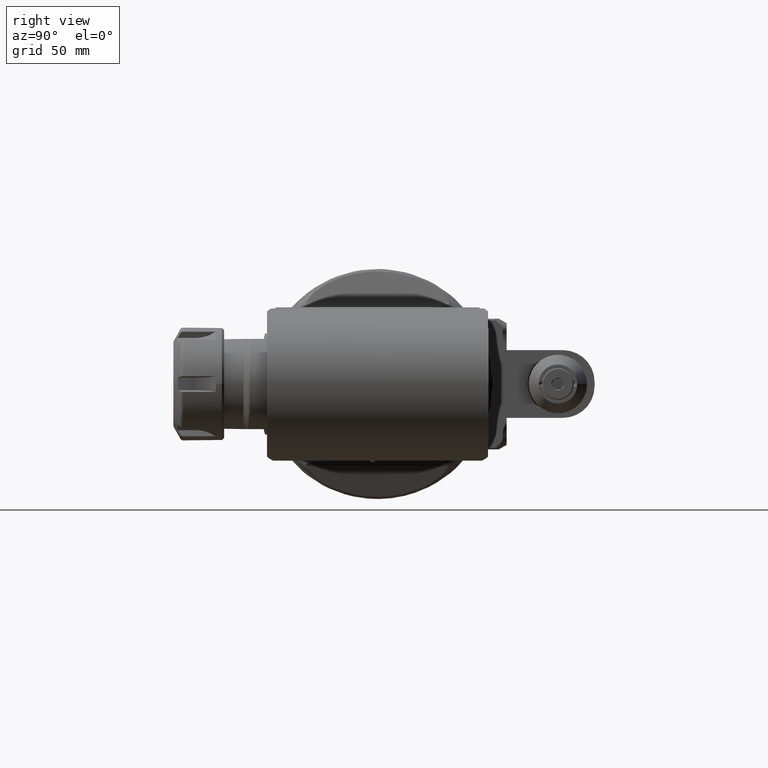
[diagram: clean part render]
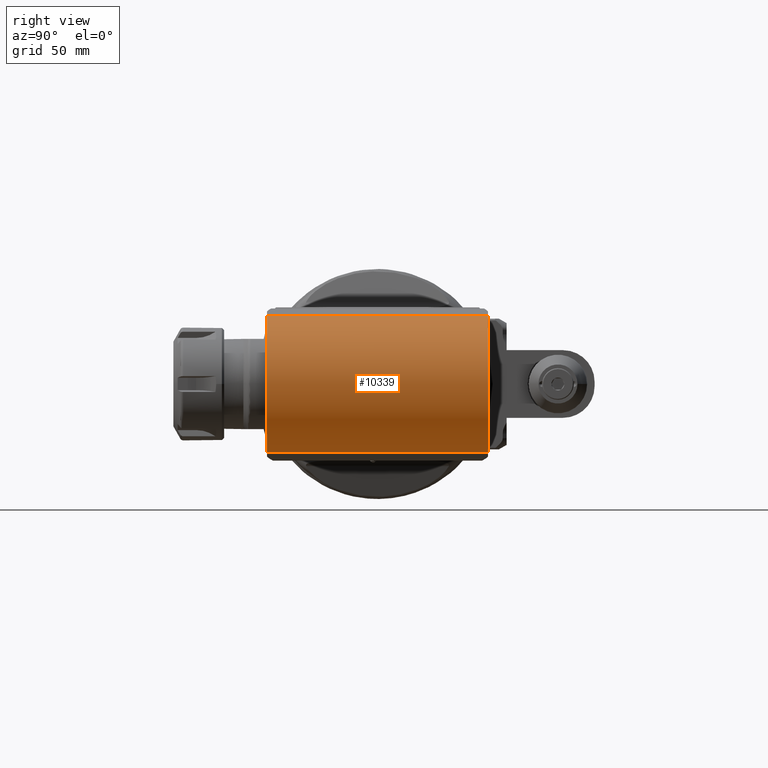
[diagram: same view with one face highlighted and labeled with its STEP entity id]
A machine part, right view. The second image highlights one B-rep face of the part: STEP entity #10339.
In plain terms, the highlighted cylindrical surface (partial cylindrical patch) has radius 31 mm, axis along (0, 1, 0).
Its self-contained STEP definition (entity closure, byte-faithful):
#801=LINE('',#14774,#1566);
#804=LINE('',#14842,#1569);
#1566=VECTOR('',#11983,98.);
#1569=VECTOR('',#12002,98.);
#2310=CYLINDRICAL_SURFACE('',#10984,31.);
#2438=FACE_OUTER_BOUND('',#3009,.T.);
#3009=EDGE_LOOP('',(#6920,#6921,#6922,#6923));
#3650=CIRCLE('',#10982,31.);
#3652=CIRCLE('',#10985,31.);
#4087=VERTEX_POINT('',#14771);
#4088=VERTEX_POINT('',#14773);
#4093=VERTEX_POINT('',#14799);
#4104=VERTEX_POINT('',#14841);
#5242=EDGE_CURVE('',#4088,#4087,#801,.T.);
#5250=EDGE_CURVE('',#4088,#4093,#3650,.T.);
#5262=EDGE_CURVE('',#4104,#4093,#804,.T.);
#5263=EDGE_CURVE('',#4104,#4087,#3652,.T.);
#6920=ORIENTED_EDGE('',*,*,#5262,.T.);
#6921=ORIENTED_EDGE('',*,*,#5250,.F.);
#6922=ORIENTED_EDGE('',*,*,#5242,.T.);
#6923=ORIENTED_EDGE('',*,*,#5263,.F.);
#10339=ADVANCED_FACE('',(#2438),#2310,.T.);
#10982=AXIS2_PLACEMENT_3D('',#14800,#11995,#11996);
#10984=AXIS2_PLACEMENT_3D('',#14840,#12000,#12001);
#10985=AXIS2_PLACEMENT_3D('',#14843,#12003,#12004);
#11983=DIRECTION('',(0.,1.,0.));
#11995=DIRECTION('center_axis',(0.,-1.,0.));
#11996=DIRECTION('ref_axis',(0.207911690816993,0.,-0.978147600733968));
#12000=DIRECTION('center_axis',(0.,1.,0.));
#12001=DIRECTION('ref_axis',(1.,0.,0.));
#12002=DIRECTION('',(0.,-1.,0.));
#12003=DIRECTION('center_axis',(0.,1.,0.));
#12004=DIRECTION('ref_axis',(0.207911690816993,0.,0.978147600733968));
#14771=CARTESIAN_POINT('',(284.5083594153,49.,-30.32257562275));
#14773=CARTESIAN_POINT('',(284.5083594153,-49.,-30.32257562275));
#14774=CARTESIAN_POINT('',(284.5083594153,-49.,-30.32257562275));
#14799=CARTESIAN_POINT('',(284.5083594153,-49.,30.32257562275));
#14800=CARTESIAN_POINT('Origin',(278.063097,-49.,0.));
#14840=CARTESIAN_POINT('Origin',(278.063097,49.,0.));
#14841=CARTESIAN_POINT('',(284.5083594153,49.,30.32257562275));
#14842=CARTESIAN_POINT('',(284.5083594153,49.,30.32257562275));
#14843=CARTESIAN_POINT('Origin',(278.063097,49.,0.));